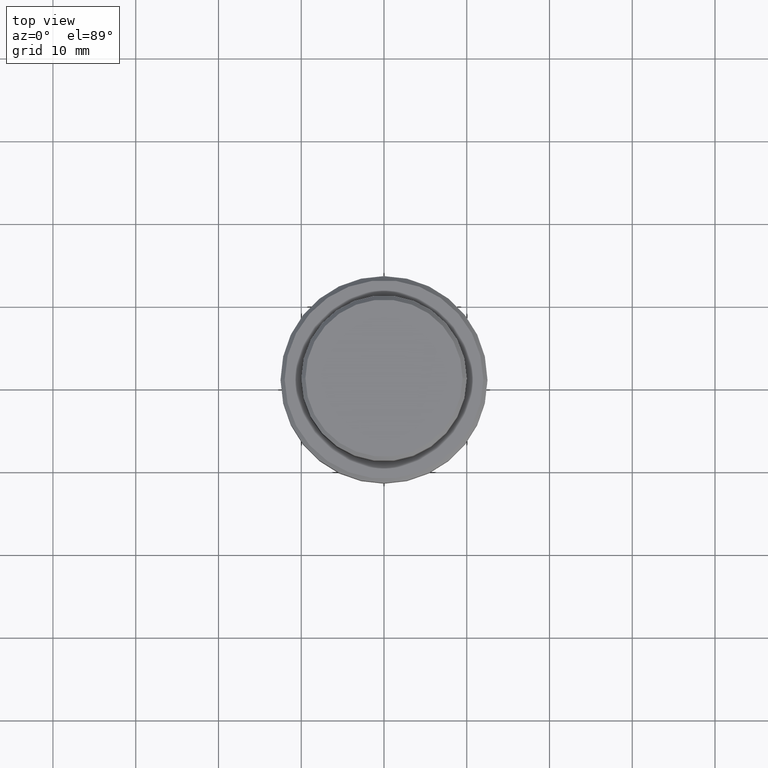
[diagram: clean part render]
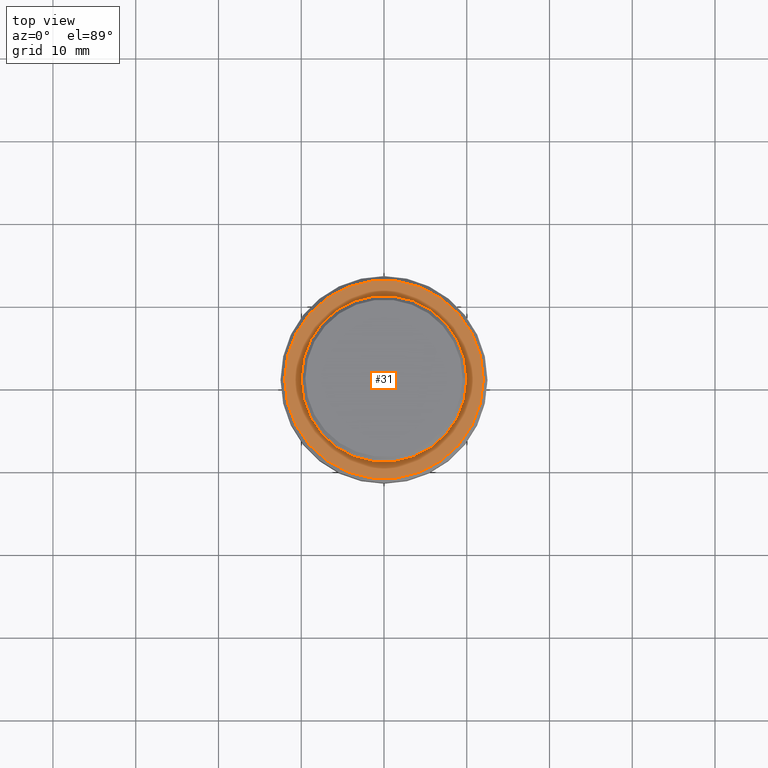
[diagram: same view with one face highlighted and labeled with its STEP entity id]
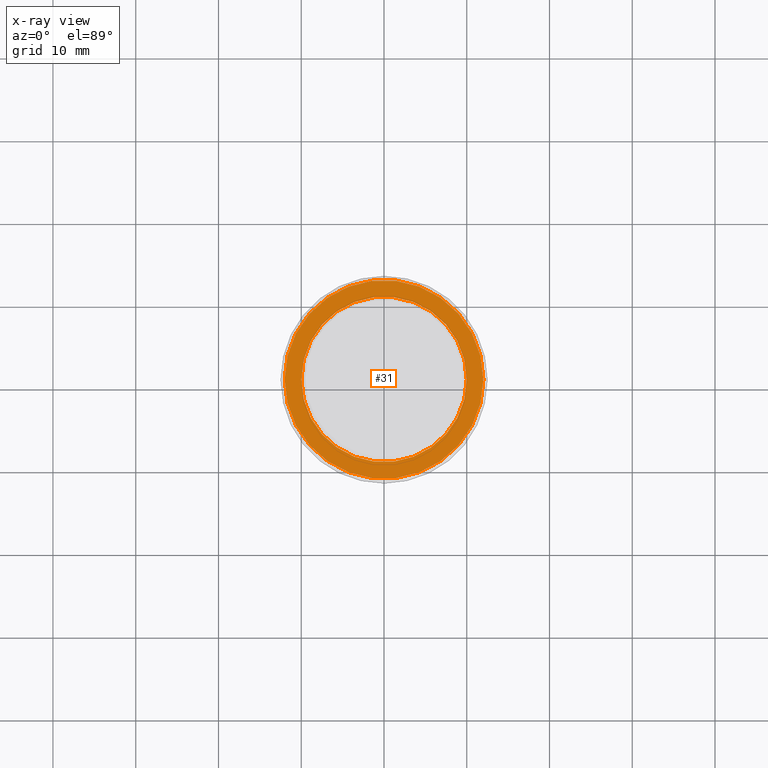
[diagram: x-ray of the same camera — body ghosted, the highlighted face saturated]
A machine part, top view. The second image highlights one B-rep face of the part: STEP entity #31.
The next image is the same camera in x-ray: the body ghosted, the highlighted face saturated — about 0% of this face is hidden behind the body in this view.
In plain terms, the highlighted planar face has unit normal (0, -0, 1).
Its self-contained STEP definition (entity closure, byte-faithful):
#31 = ADVANCED_FACE ( 'NONE', ( #1411, #553 ), #1202, .T. ) ;
#99 = DIRECTION ( 'NONE',  ( 1.000000000000000000, 0.000000000000000000, 0.000000000000000000 ) ) ;
#102 = AXIS2_PLACEMENT_3D ( 'NONE', #488, #586, #909 ) ;
#194 = EDGE_CURVE ( 'NONE', #223, #713, #1146, .T. ) ;
#202 = DIRECTION ( 'NONE',  ( 0.000000000000000000, 0.000000000000000000, -1.000000000000000000 ) ) ;
#208 = DIRECTION ( 'NONE',  ( 0.000000000000000000, -0.000000000000000000, 1.000000000000000000 ) ) ;
#223 = VERTEX_POINT ( 'NONE', #689 ) ;
#284 = AXIS2_PLACEMENT_3D ( 'NONE', #1066, #1393, #1179 ) ;
#322 = VERTEX_POINT ( 'NONE', #1343 ) ;
#488 = CARTESIAN_POINT ( 'NONE',  ( 0.000000000000000000, 0.000000000000000000, -9.000000000000000000 ) ) ;
#553 = FACE_BOUND ( 'NONE', #1383, .T. ) ;
#586 = DIRECTION ( 'NONE',  ( 0.000000000000000000, 0.000000000000000000, -1.000000000000000000 ) ) ;
#619 = EDGE_LOOP ( 'NONE', ( #1018, #720 ) ) ;
#635 = CARTESIAN_POINT ( 'NONE',  ( 0.000000000000000000, 0.000000000000000000, -9.000000000000000000 ) ) ;
#689 = CARTESIAN_POINT ( 'NONE',  ( 9.999999999999992895, 0.000000000000000000, -9.000000000000000000 ) ) ;
#699 = EDGE_CURVE ( 'NONE', #713, #223, #921, .T. ) ;
#713 = VERTEX_POINT ( 'NONE', #873 ) ;
#720 = ORIENTED_EDGE ( 'NONE', *, *, #861, .T. ) ;
#729 = CARTESIAN_POINT ( 'NONE',  ( 0.000000000000000000, 0.000000000000000000, -9.000000000000000000 ) ) ;
#747 = EDGE_CURVE ( 'NONE', #1291, #322, #940, .T. ) ;
#767 = CARTESIAN_POINT ( 'NONE',  ( -12.00000000000001066, 0.000000000000000000, -9.000000000000000000 ) ) ;
#786 = AXIS2_PLACEMENT_3D ( 'NONE', #635, #839, #1374 ) ;
#839 = DIRECTION ( 'NONE',  ( -0.000000000000000000, -0.000000000000000000, 1.000000000000000000 ) ) ;
#859 = CARTESIAN_POINT ( 'NONE',  ( 0.000000000000000000, 9.499999999999992895, -9.000000000000000000 ) ) ;
#861 = EDGE_CURVE ( 'NONE', #322, #1291, #1035, .T. ) ;
#873 = CARTESIAN_POINT ( 'NONE',  ( -9.999999999999992895, 1.224646799147352468E-15, -9.000000000000000000 ) ) ;
#909 = DIRECTION ( 'NONE',  ( 1.000000000000000000, 0.000000000000000000, 0.000000000000000000 ) ) ;
#921 = CIRCLE ( 'NONE', #1319, 9.999999999999992895 ) ;
#938 = AXIS2_PLACEMENT_3D ( 'NONE', #859, #208, #99 ) ;
#940 = CIRCLE ( 'NONE', #284, 12.00000000000001066 ) ;
#1018 = ORIENTED_EDGE ( 'NONE', *, *, #747, .T. ) ;
#1035 = CIRCLE ( 'NONE', #786, 12.00000000000001066 ) ;
#1066 = CARTESIAN_POINT ( 'NONE',  ( 0.000000000000000000, 0.000000000000000000, -9.000000000000000000 ) ) ;
#1078 = DIRECTION ( 'NONE',  ( 1.000000000000000000, 0.000000000000000000, 0.000000000000000000 ) ) ;
#1146 = CIRCLE ( 'NONE', #102, 9.999999999999992895 ) ;
#1179 = DIRECTION ( 'NONE',  ( 1.000000000000000000, 0.000000000000000000, 0.000000000000000000 ) ) ;
#1196 = ORIENTED_EDGE ( 'NONE', *, *, #194, .T. ) ;
#1202 = PLANE ( 'NONE',  #938 ) ;
#1281 = ORIENTED_EDGE ( 'NONE', *, *, #699, .T. ) ;
#1291 = VERTEX_POINT ( 'NONE', #767 ) ;
#1319 = AXIS2_PLACEMENT_3D ( 'NONE', #729, #202, #1078 ) ;
#1343 = CARTESIAN_POINT ( 'NONE',  ( 12.00000000000001066, 1.500192328955508326E-15, -9.000000000000000000 ) ) ;
#1374 = DIRECTION ( 'NONE',  ( 1.000000000000000000, 0.000000000000000000, 0.000000000000000000 ) ) ;
#1383 = EDGE_LOOP ( 'NONE', ( #1196, #1281 ) ) ;
#1393 = DIRECTION ( 'NONE',  ( -0.000000000000000000, -0.000000000000000000, 1.000000000000000000 ) ) ;
#1411 = FACE_OUTER_BOUND ( 'NONE', #619, .T. ) ;